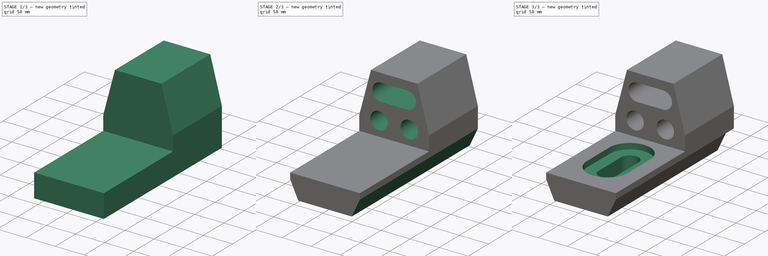
[diagram: build sequence overview — one tinted view per stage of 3, left to right]
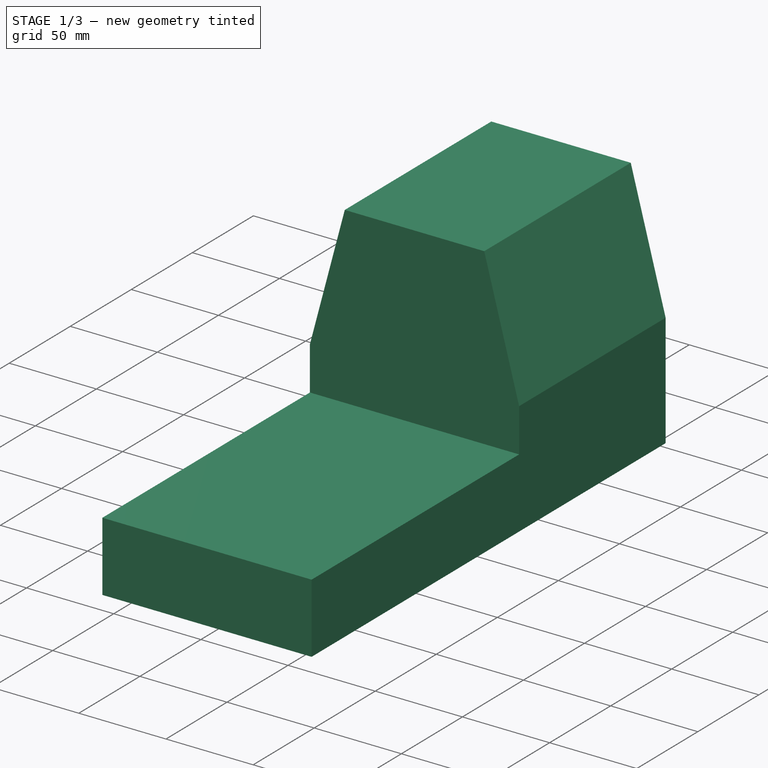
[diagram: stage 1 of 3 — iso view after this stage's code; geometry added in this stage tinted green]
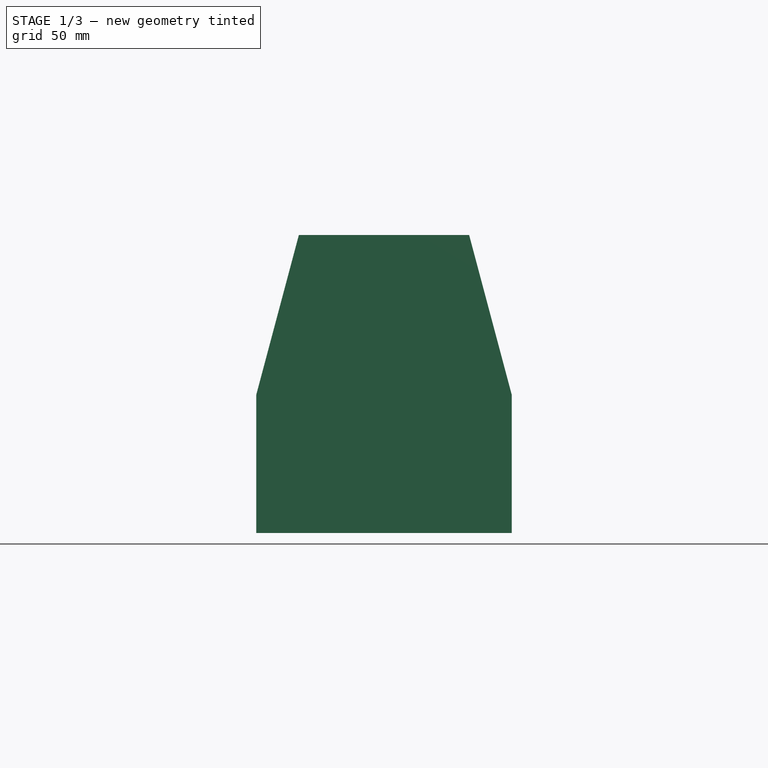
[diagram: stage 1 of 3 — front view after this stage's code; geometry added in this stage tinted green]
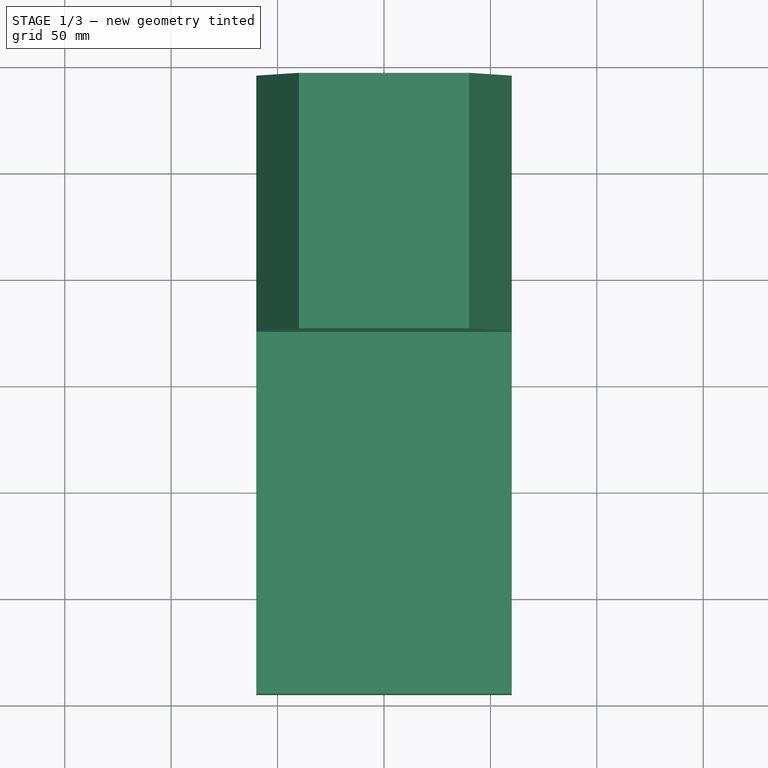
[diagram: stage 1 of 3 — top view after this stage's code; geometry added in this stage tinted green]
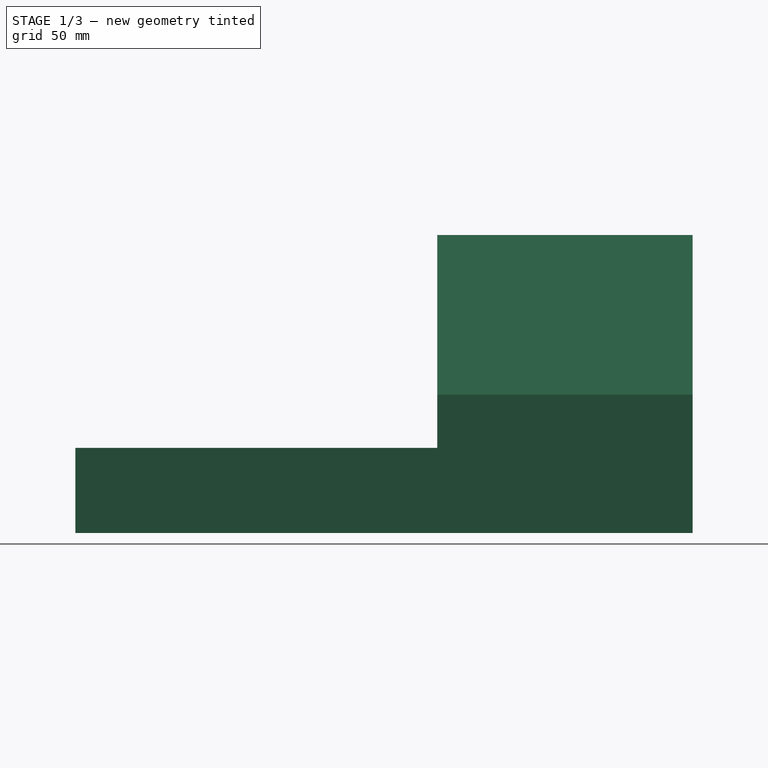
[diagram: stage 1 of 3 — right view after this stage's code; geometry added in this stage tinted green]
FCSTD DOCUMENT  (FreeCAD 0.16R)
Label: Ejer final 23
License: All rights reserved
LicenseURL: http://en.wikipedia.org/wiki/All_rights_reserved
objects: Sketcher::SketchObject×8, PartDesign::Pocket×7, PartDesign::Pad×1
note: 24 computed .brp shape members not serialized (recipe doc carries the construction recipe); baked Part::Feature solids carry a one-line shape summary decoded from their .brp

FEATURE [Sketcher::SketchObject] Sketch
  sketch-geometry (4):
    g0: LineSegment StartX=-60 StartY=145 StartZ=0 EndX=60 EndY=145 EndZ=0
    g1: LineSegment StartX=60 StartY=145 StartZ=0 EndX=60 EndY=-145 EndZ=0
    g2: LineSegment StartX=60 StartY=-145 StartZ=0 EndX=-60 EndY=-145 EndZ=0
    g3: LineSegment StartX=-60 StartY=-145 StartZ=0 EndX=-60 EndY=145 EndZ=0
  constraints (12):
    c: Coincident(g0,g1)
    c: Coincident(g1,g2)
    c: Coincident(g2,g3)
    c: Coincident(g3,g0)
    c: Horizontal(g0)
    c: Horizontal(g2)
    c: Vertical(g1)
    c: Vertical(g3)
    c: DistanceY(g3,g3) = 290
    c: DistanceX(g2,g2) = 120
    c: Symmetric(g2,g1,g-2)
    c: Symmetric(g1,g0,g-1)
FEATURE [PartDesign::Pad] Pad
  Length = 140
  Length2 = 100
  Sketch = -> Sketch
  Type = 0
FEATURE [Sketcher::SketchObject] Sketch001
  ExternalGeometry = -> [Pad]
  Placement = pos=(0,0,140) rot=(0,0,1;0rad)
  Support = -> Pad [Face6]
  sketch-geometry (4):
    g0: LineSegment StartX=-60 StartY=-145 StartZ=0 EndX=60 EndY=-145 EndZ=0
    g1: LineSegment StartX=60 StartY=-145 StartZ=0 EndX=60 EndY=25 EndZ=0
    g2: LineSegment StartX=60 StartY=25 StartZ=0 EndX=-60 EndY=25 EndZ=0
    g3: LineSegment StartX=-60 StartY=25 StartZ=0 EndX=-60 EndY=-145 EndZ=0
  constraints (11):
    c: Coincident(g0,g1)
    c: Coincident(g1,g2)
    c: Coincident(g2,g3)
    c: Coincident(g3,g0)
    c: Horizontal(g0)
    c: Horizontal(g2)
    c: Vertical(g1)
    c: Vertical(g3)
    c: Coincident(g0,g-3)
    c: Coincident(g0,g-3)
    c: DistanceY(g1,g1) = 170
FEATURE [PartDesign::Pocket] Pocket
  Length = 100
  Sketch = -> Sketch001
  Type = 0
FEATURE [Sketcher::SketchObject] Sketch002
  ExternalGeometry = -> [Pocket]
  Placement = pos=(0,25,0) rot=(1,0,0;1.5708rad)
  Support = -> Pocket [Face6]
  sketch-geometry (10):
    g0: LineSegment [constr] StartX=60 StartY=40 StartZ=0 EndX=60 EndY=65 EndZ=0
    g1: LineSegment [constr] StartX=-60 StartY=40 StartZ=0 EndX=-60 EndY=65 EndZ=0
    g2: LineSegment [constr] StartX=-60 StartY=140 StartZ=0 EndX=-40 EndY=140 EndZ=0
    g3: LineSegment [constr] StartX=60 StartY=140 StartZ=0 EndX=40 EndY=140 EndZ=0
    g4: LineSegment StartX=40 StartY=140 StartZ=0 EndX=60 EndY=65 EndZ=0
    g5: LineSegment StartX=60 StartY=65 StartZ=0 EndX=60 EndY=140 EndZ=0
    g6: LineSegment StartX=60 StartY=140 StartZ=0 EndX=40 EndY=140 EndZ=0
    g7: LineSegment StartX=-60 StartY=65 StartZ=0 EndX=-40 EndY=140 EndZ=0
    g8: LineSegment StartX=-40 StartY=140 StartZ=0 EndX=-60 EndY=140 EndZ=0
    g9: LineSegment StartX=-60 StartY=140 StartZ=0 EndX=-60 EndY=65 EndZ=0
  constraints (24):
    c: Vertical(g0)
    c: Vertical(g1)
    c: DistanceY(g1,g1) = 25
    c: DistanceY(g0,g0) = 25
    c: Coincident(g0,g-4)
    c: Coincident(g1,g-5)
    c: Horizontal(g2)
    c: Horizontal(g3)
    c: DistanceX(g2,g2) = 20
    c: DistanceX(g3,g3) = 20
    c: Coincident(g3,g-4)
    c: Coincident(g2,g-5)
    c: Coincident(g3,g4)
    c: Coincident(g4,g0)
    c: Coincident(g4,g5)
    c: Coincident(g5,g3)
    c: Coincident(g5,g6)
    c: Coincident(g6,g4)
    c: Coincident(g1,g7)
    c: Coincident(g7,g2)
    c: Coincident(g7,g8)
    c: Coincident(g8,g2)
    c: Coincident(g8,g9)
    c: Coincident(g9,g7)
FEATURE [PartDesign::Pocket] Pocket001
  Length = 5
  Sketch = -> Sketch002
  Type = 1
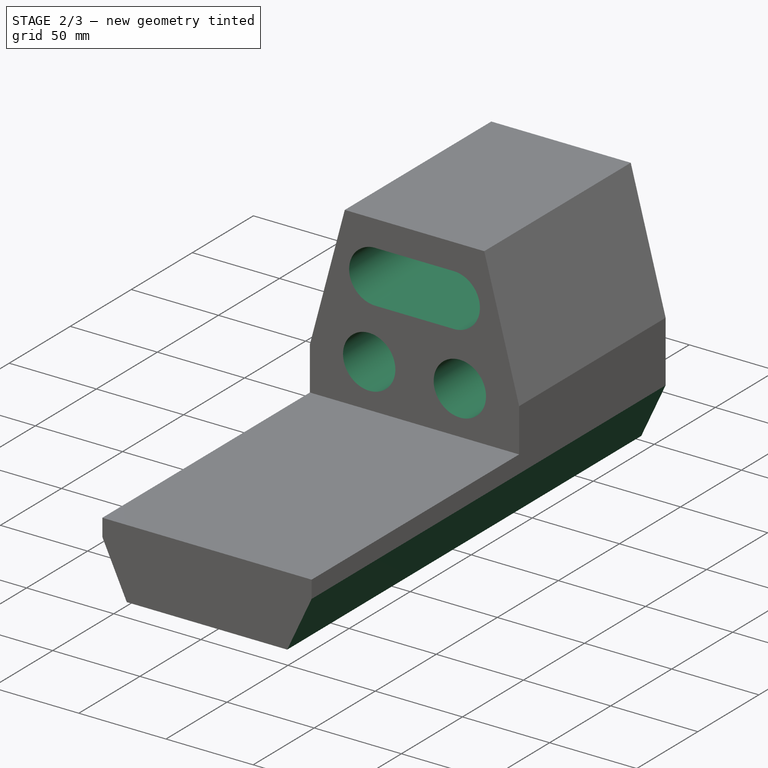
[diagram: stage 2 of 3 — iso view after this stage's code; geometry added in this stage tinted green]
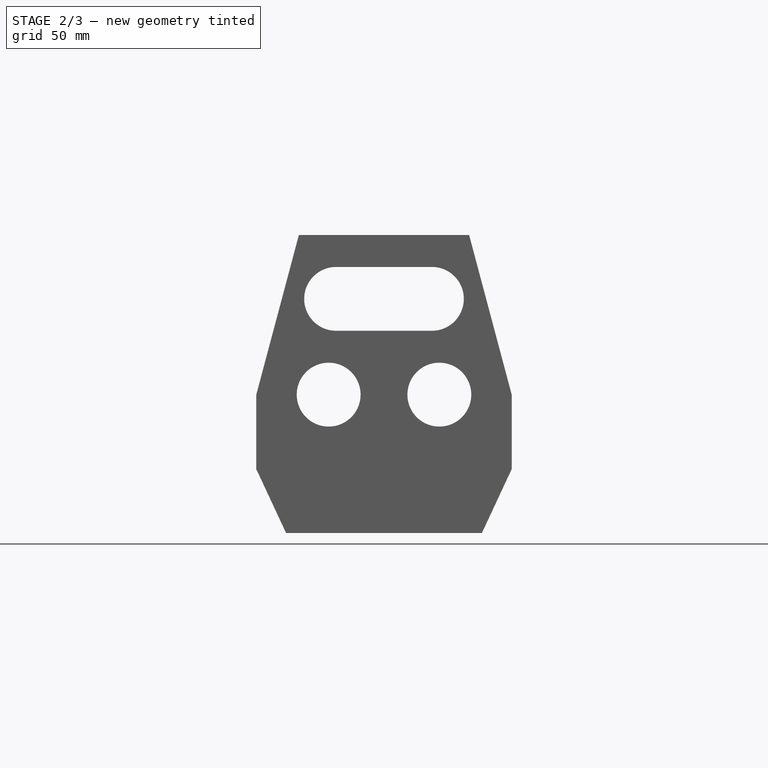
[diagram: stage 2 of 3 — front view after this stage's code; geometry added in this stage tinted green]
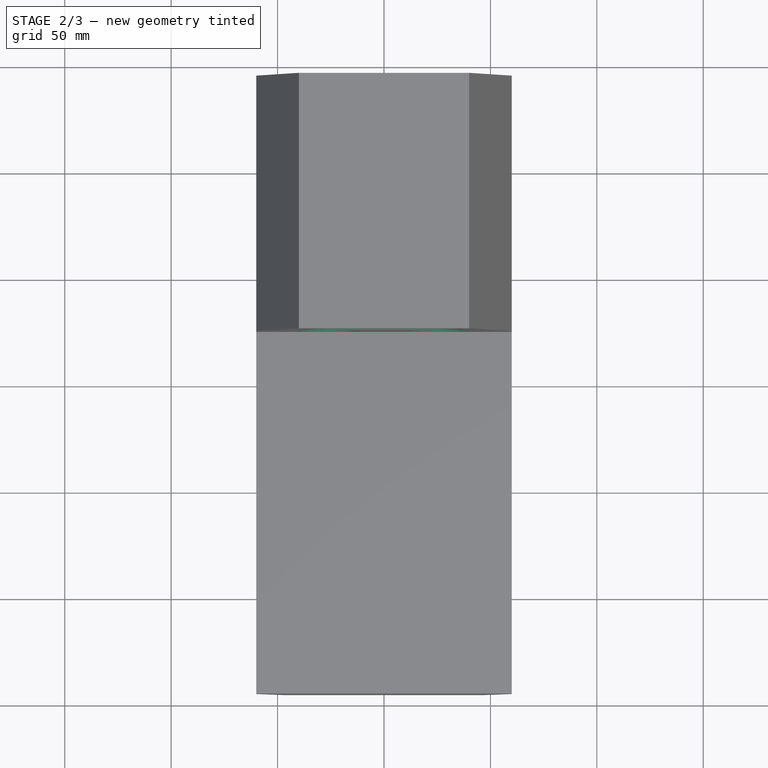
[diagram: stage 2 of 3 — top view after this stage's code; geometry added in this stage tinted green]
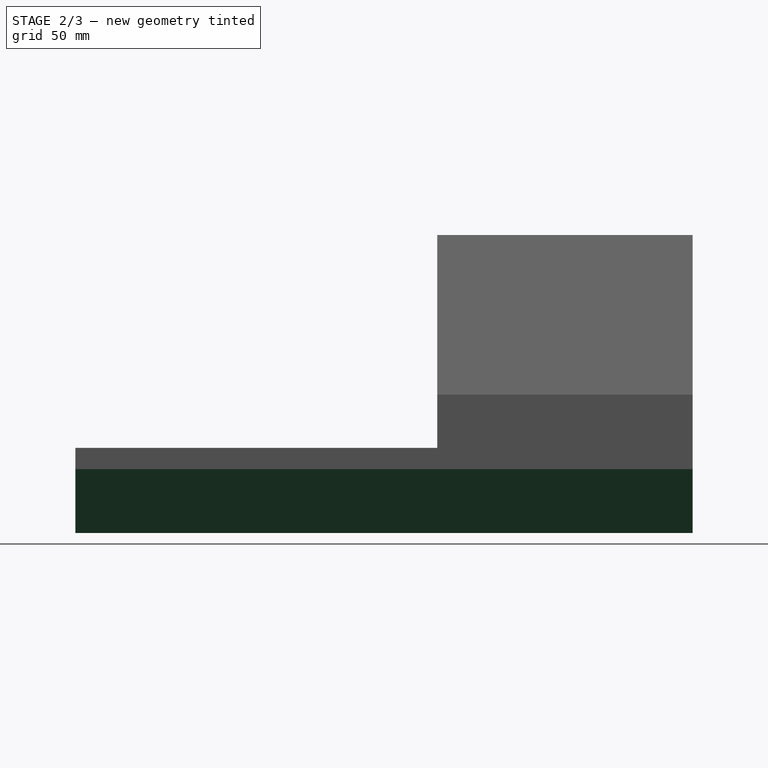
[diagram: stage 2 of 3 — right view after this stage's code; geometry added in this stage tinted green]
FEATURE [Sketcher::SketchObject] Sketch003
  ExternalGeometry = -> [Pocket001]
  Placement = pos=(0,25,0) rot=(1,0,0;1.5708rad)
  Support = -> Pocket001 [Face10]
  sketch-geometry (6):
    g0: ArcOfCircle CenterX=-22.5 CenterY=110 CenterZ=0 NormalX=0 NormalY=0 NormalZ=1 Radius=15 StartAngle=1.57079 EndAngle=4.71239
    g1: ArcOfCircle CenterX=22.5 CenterY=110 CenterZ=0 NormalX=0 NormalY=0 NormalZ=1 Radius=15 StartAngle=4.71239 EndAngle=7.85398
    g2: Circle CenterX=-26 CenterY=65 CenterZ=0 NormalX=0 NormalY=0 NormalZ=1 Radius=15
    g3: Circle CenterX=26 CenterY=65 CenterZ=0 NormalX=0 NormalY=0 NormalZ=1 Radius=15
    g4: LineSegment StartX=-22.5 StartY=125 StartZ=0 EndX=22.5 EndY=125 EndZ=0
    g5: LineSegment StartX=-22.5 StartY=95 StartZ=0 EndX=22.5 EndY=95 EndZ=0
  constraints (19):
    c: Radius(g3) = 15
    c: Equal(g3,g2)
    c: DistanceY(g-4,g2) = 25
    c: DistanceY(g-3,g3) = 25
    c: DistanceX(g2,g3) = 52
    c: Symmetric(g3,g2,g-2)
    c: Radius(g1) = 15
    c: Equal(g1,g0)
    c: DistanceX(g0,g1) = 45
    c: Symmetric(g1,g0,g-2)
    c: DistanceY(g-4,g0) = 70
    c: Horizontal(g4)
    c: Horizontal(g5)
    c: Coincident(g1,g5)
    c: Coincident(g1,g4)
    c: Coincident(g0,g4)
    c: Coincident(g0,g5)
    c: Tangent(g5,g0)
    c: Tangent(g4,g1)
FEATURE [PartDesign::Pocket] Pocket002
  Length = 5
  Sketch = -> Sketch003
  Type = 1
FEATURE [Sketcher::SketchObject] Sketch004
  ExternalGeometry = -> [Pocket002]
  Placement = pos=(0,-145,0) rot=(1,0,0;1.5708rad)
  Support = -> Pocket002 [Face14]
  sketch-geometry (8):
    g0: LineSegment [constr] StartX=60 StartY=40 StartZ=0 EndX=60 EndY=30 EndZ=0
    g1: LineSegment [constr] StartX=-60 StartY=40 StartZ=0 EndX=-60 EndY=30 EndZ=0
    g2: LineSegment StartX=-60 StartY=30 StartZ=0 EndX=-46.0108 EndY=0 EndZ=0
    g3: LineSegment StartX=-46.0108 StartY=0 StartZ=0 EndX=-60 EndY=0 EndZ=0
    g4: LineSegment StartX=-60 StartY=0 StartZ=0 EndX=-60 EndY=30 EndZ=0
    g5: LineSegment StartX=60 StartY=30 StartZ=0 EndX=46.0108 EndY=0 EndZ=0
    g6: LineSegment StartX=46.0108 StartY=0 StartZ=0 EndX=60 EndY=0 EndZ=0
    g7: LineSegment StartX=60 StartY=0 StartZ=0 EndX=60 EndY=30 EndZ=0
  constraints (20):
    c: DistanceY(g0,g0) = 10
    c: DistanceY(g1,g1) = 10
    c: Coincident(g1,g-3)
    c: Vertical(g1)
    c: Vertical(g0)
    c: Coincident(g0,g-4)
    c: Coincident(g2,g1)
    c: Angle(g-1,g2) = 2.00713
    c: PointOnObject(g2,g-1)
    c: Coincident(g2,g3)
    c: Coincident(g3,g-3)
    c: Coincident(g3,g4)
    c: Coincident(g4,g1)
    c: Coincident(g5,g0)
    c: Angle(g5,g-1) = 2.00713
    c: PointOnObject(g5,g-1)
    c: Coincident(g5,g6)
    c: Coincident(g6,g-4)
    c: Coincident(g6,g7)
    c: Coincident(g7,g0)
FEATURE [PartDesign::Pocket] Pocket003
  Length = 5
  Sketch = -> Sketch004
  Type = 1
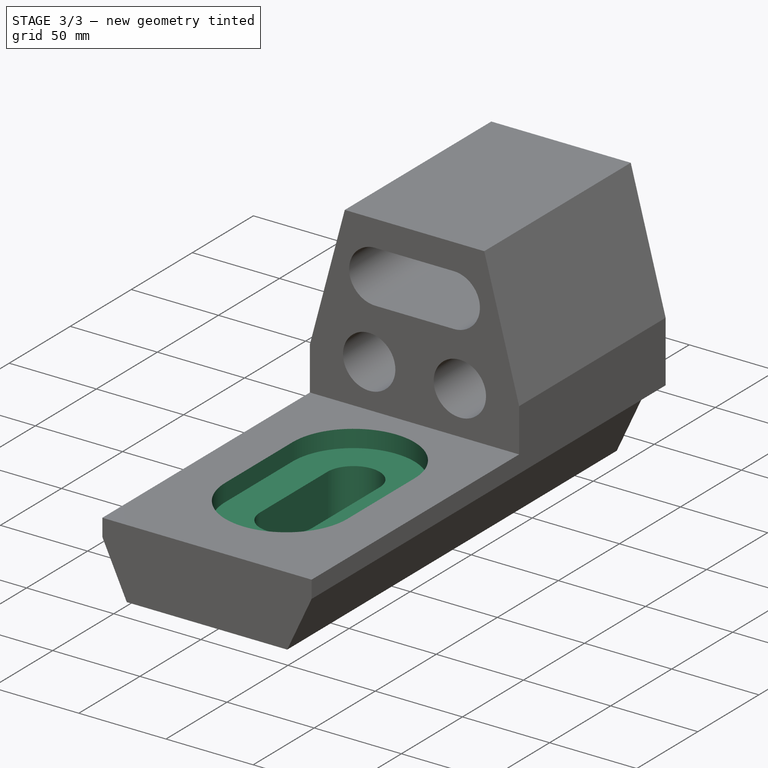
[diagram: stage 3 of 3 — iso view after this stage's code; geometry added in this stage tinted green]
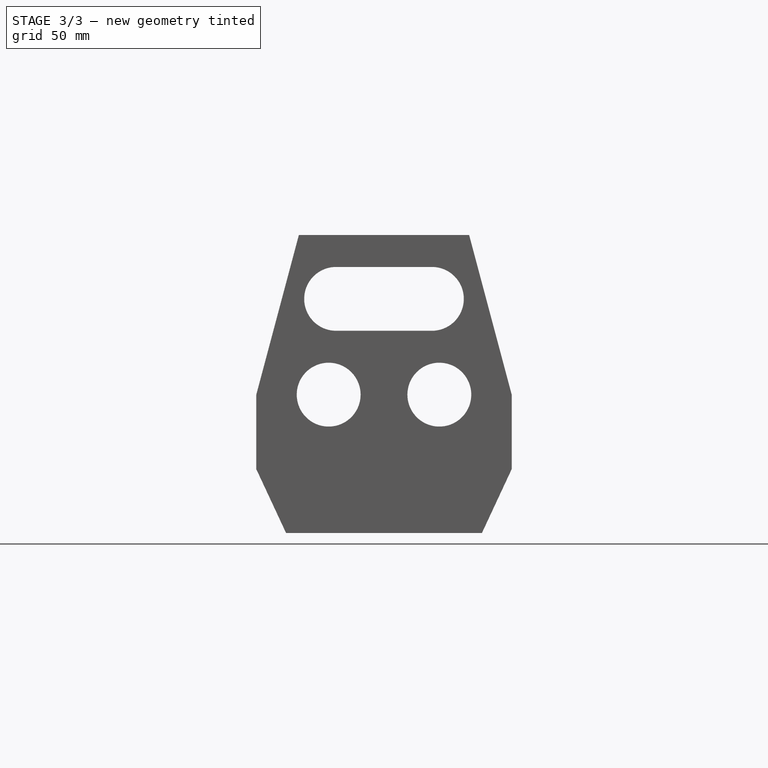
[diagram: stage 3 of 3 — front view after this stage's code; geometry added in this stage tinted green]
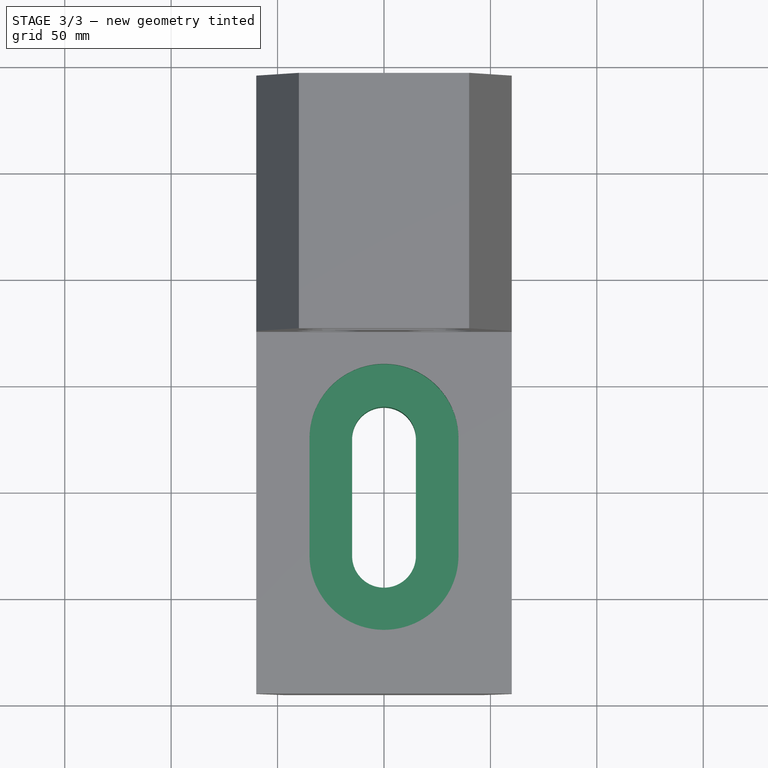
[diagram: stage 3 of 3 — top view after this stage's code; geometry added in this stage tinted green]
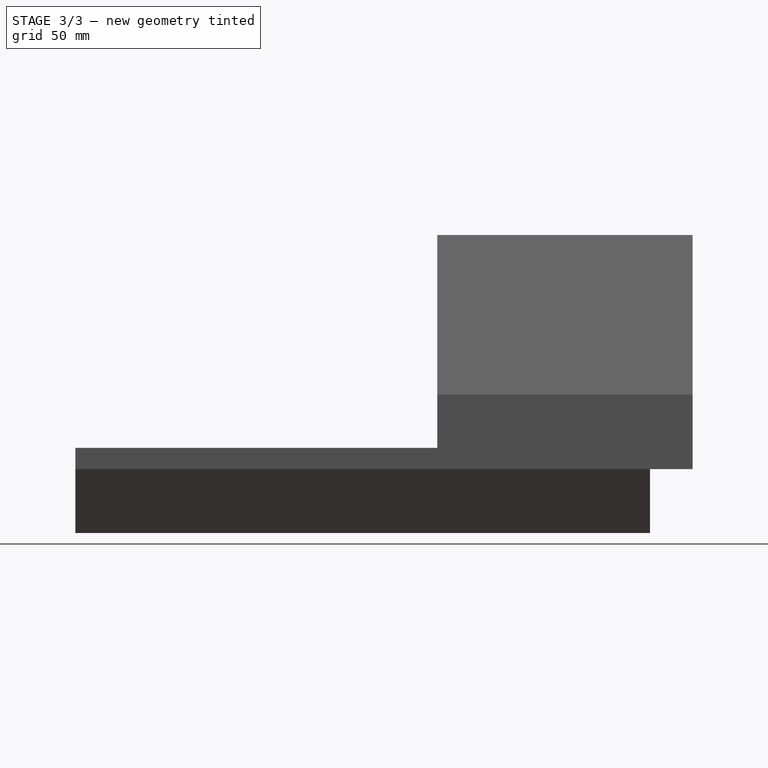
[diagram: stage 3 of 3 — right view after this stage's code; geometry added in this stage tinted green]
FEATURE [Sketcher::SketchObject] Sketch005
  ExternalGeometry = -> [Pocket003]
  Placement = pos=(0,145,0) rot=(0,0.707107,0.707107;3.14159rad)
  Support = -> Pocket003 [Face1]
  sketch-geometry (4):
    g0: LineSegment StartX=-60 StartY=30 StartZ=0 EndX=60 EndY=30 EndZ=0
    g1: LineSegment StartX=60 StartY=30 StartZ=0 EndX=60 EndY=0 EndZ=0
    g2: LineSegment StartX=60 StartY=0 StartZ=0 EndX=-60 EndY=0 EndZ=0
    g3: LineSegment StartX=-60 StartY=0 StartZ=0 EndX=-60 EndY=30 EndZ=0
  constraints (11):
    c: Coincident(g0,g1)
    c: Coincident(g1,g2)
    c: Coincident(g2,g3)
    c: Coincident(g3,g0)
    c: Horizontal(g0)
    c: Horizontal(g2)
    c: Vertical(g1)
    c: Vertical(g3)
    c: Coincident(g0,g-3)
    c: Coincident(g0,g-4)
    c: PointOnObject(g-1,g2)
FEATURE [PartDesign::Pocket] Pocket004
  Length = 20
  Sketch = -> Sketch005
  Type = 0
FEATURE [Sketcher::SketchObject] Sketch006
  ExternalGeometry = -> [Pocket004]
  Placement = pos=(0,0,40) rot=(0,0,1;0rad)
  Support = -> Pocket004 [Face17]
  sketch-geometry (4):
    g0: ArcOfCircle CenterX=0 CenterY=-25 CenterZ=0 NormalX=0 NormalY=0 NormalZ=1 Radius=15 StartAngle=1.95302e-07 EndAngle=3.1416
    g1: ArcOfCircle CenterX=0 CenterY=-80 CenterZ=0 NormalX=0 NormalY=0 NormalZ=1 Radius=15 StartAngle=3.1416 EndAngle=6.28319
    g2: LineSegment StartX=-15 StartY=-80 StartZ=0 EndX=-15 EndY=-25 EndZ=0
    g3: LineSegment StartX=15 StartY=-25 StartZ=0 EndX=15 EndY=-80 EndZ=0
  constraints (14):
    c: PointOnObject(g1,g-2)
    c: Radius(g1) = 15
    c: Equal(g1,g0)
    c: Coincident(g0,g3)
    c: Coincident(g0,g2)
    c: Coincident(g1,g2)
    c: Coincident(g1,g3)
    c: DistanceY(g-3,g1) = 65
    c: DistanceY(g-3,g0) = 120
    c: Tangent(g1,g2)
    c: Tangent(g1,g3)
    c: Tangent(g3,g0)
    c: Tangent(g2,g0)
    c: Vertical(g2)
FEATURE [PartDesign::Pocket] Pocket005
  Length = 5
  Sketch = -> Sketch006
  Type = 1
FEATURE [Sketcher::SketchObject] Sketch007
  ExternalGeometry = -> [Pocket005]
  Placement = pos=(0,0,40) rot=(0,0,1;0rad)
  Support = -> Pocket005 [Face17]
  sketch-geometry (4):
    g0: ArcOfCircle CenterX=0 CenterY=-25 CenterZ=0 NormalX=0 NormalY=0 NormalZ=1 Radius=35 StartAngle=-3.53e-10 EndAngle=3.14159
    g1: ArcOfCircle CenterX=0 CenterY=-80 CenterZ=0 NormalX=0 NormalY=0 NormalZ=1 Radius=35 StartAngle=3.14159 EndAngle=6.28319
    g2: LineSegment StartX=35 StartY=-25 StartZ=0 EndX=35 EndY=-80 EndZ=0
    g3: LineSegment StartX=-35 StartY=-25 StartZ=0 EndX=-35 EndY=-80 EndZ=0
  constraints (12):
    c: Coincident(g0,g-3)
    c: Coincident(g1,g-4)
    c: Radius(g1) = 35
    c: Equal(g1,g0)
    c: Vertical(g2)
    c: Vertical(g3)
    c: Coincident(g1,g3)
    c: Coincident(g0,g3)
    c: Coincident(g0,g2)
    c: Coincident(g1,g2)
    c: Tangent(g1,g2)
    c: Tangent(g3,g0)
FEATURE [PartDesign::Pocket] Pocket006
  Length = 10
  Sketch = -> Sketch007
  Type = 0
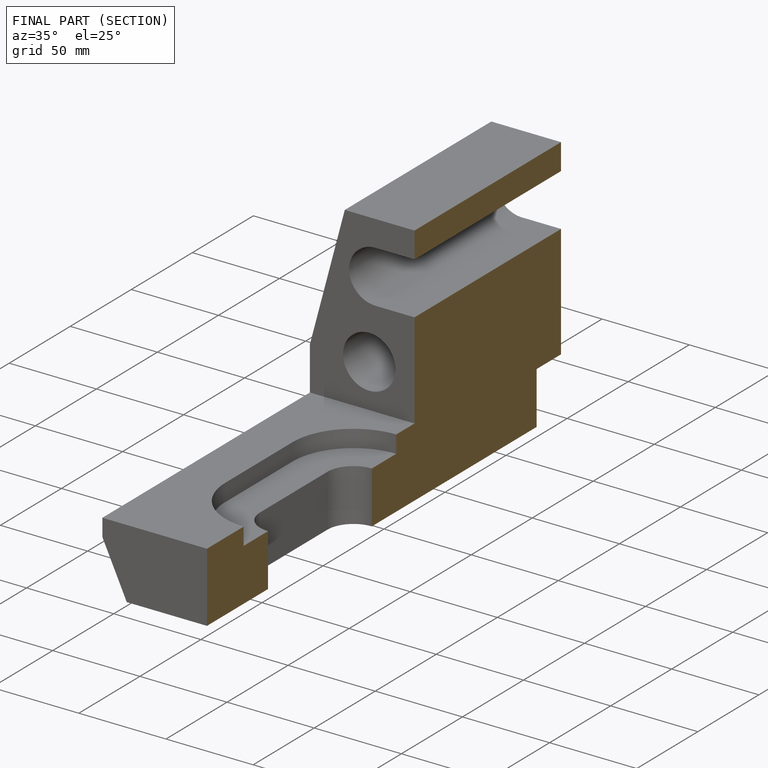
[diagram: finished part — half-section view (interior)]
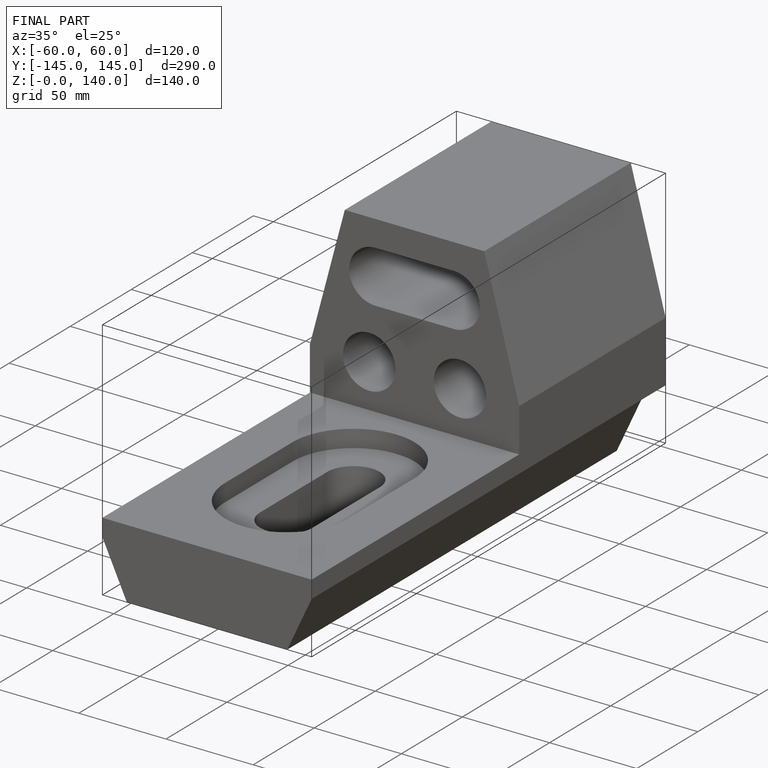
[diagram: finished part — iso view with bounding-box wireframe]
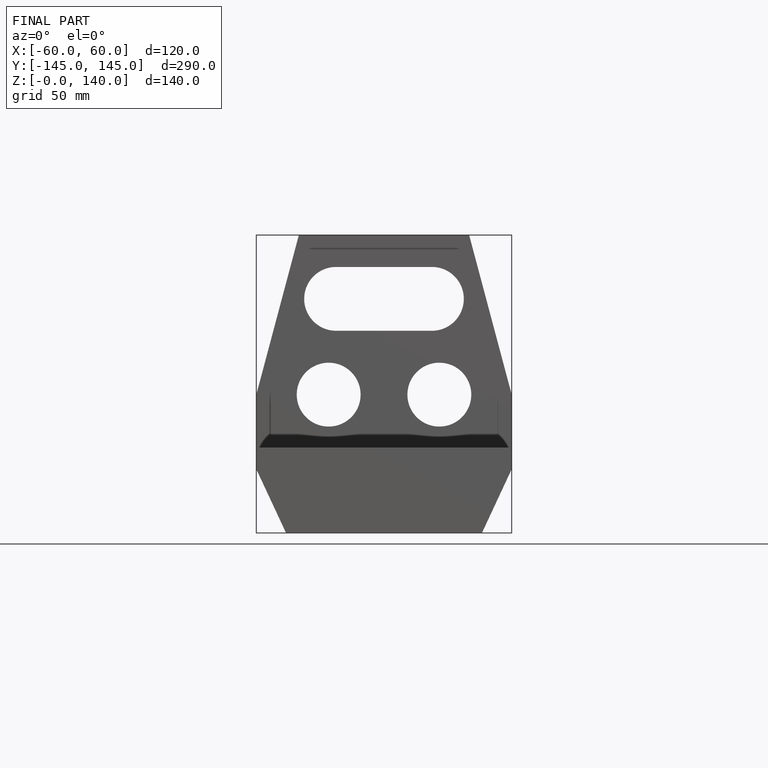
[diagram: finished part — front view with bounding-box wireframe]
